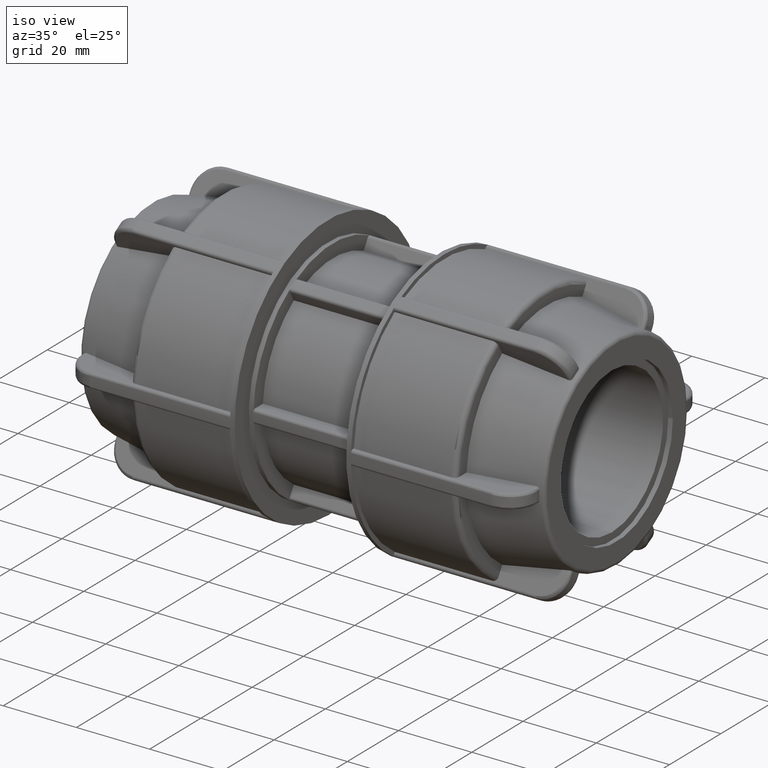
[diagram: clean part render]
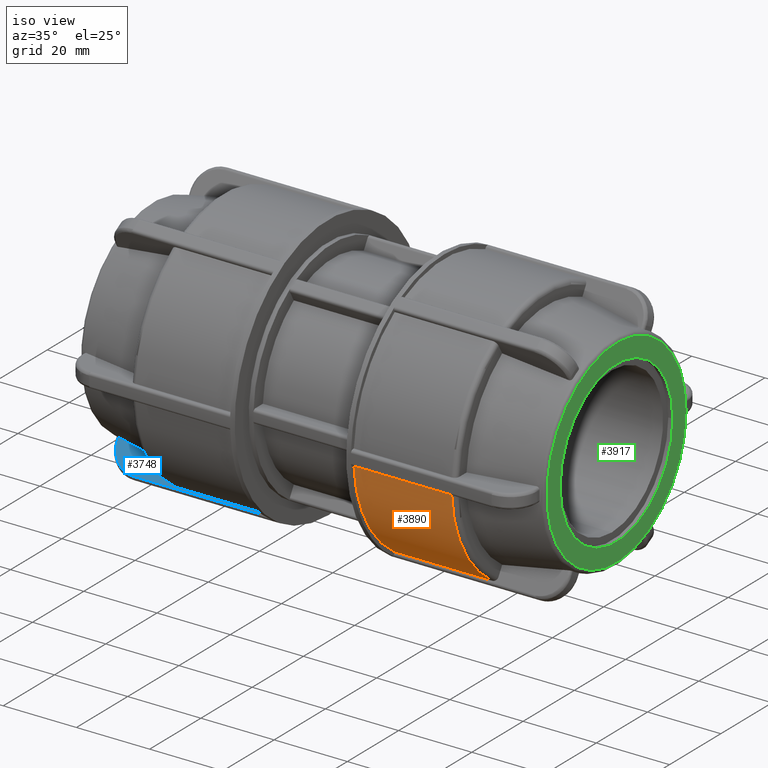
[diagram: same view with three faces highlighted in distinct colors, each labeled with its STEP entity id]
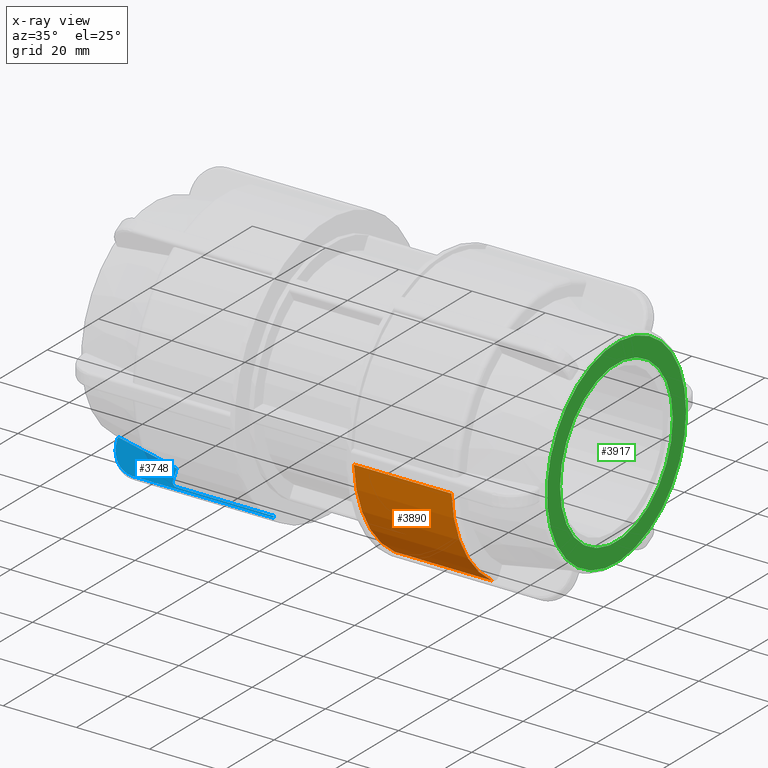
[diagram: x-ray of the same camera — body ghosted, the three highlighted faces saturated]
A machine part, iso view with three faces highlighted in distinct colors.
The next image is the same camera in x-ray (body ghosted, the three faces saturated) — at least one of them is partly hidden behind the body in this view.
Their STEP definitions:

[orange] entity #3890 — the highlighted cylindrical surface (partial cylindrical patch) has radius 35.405 mm, axis along (1, 0, 0).
#504=FACE_OUTER_BOUND('',#756,.T.);
#756=EDGE_LOOP('',(#3444,#3445,#3446,#3447));
#972=LINE('',#7444,#1200);
#996=LINE('',#7827,#1224);
#1200=VECTOR('',#5204,26.67);
#1224=VECTOR('',#5292,26.67);
#1450=CIRCLE('',#4298,35.405);
#1457=CIRCLE('',#4311,35.405);
#1779=VERTEX_POINT('',#7441);
#1780=VERTEX_POINT('',#7443);
#1821=VERTEX_POINT('',#7815);
#1822=VERTEX_POINT('',#7826);
#2304=EDGE_CURVE('',#1780,#1779,#972,.T.);
#2366=EDGE_CURVE('',#1822,#1821,#996,.T.);
#2389=EDGE_CURVE('',#1779,#1822,#1450,.T.);
#2398=EDGE_CURVE('',#1780,#1821,#1457,.T.);
#3444=ORIENTED_EDGE('',*,*,#2366,.T.);
#3445=ORIENTED_EDGE('',*,*,#2398,.F.);
#3446=ORIENTED_EDGE('',*,*,#2304,.T.);
#3447=ORIENTED_EDGE('',*,*,#2389,.T.);
#3682=CYLINDRICAL_SURFACE('',#4310,35.405);
#3890=ADVANCED_FACE('',(#504),#3682,.T.);
#4298=AXIS2_PLACEMENT_3D('',#7907,#5332,#5333);
#4310=AXIS2_PLACEMENT_3D('',#7924,#5358,#5359);
#4311=AXIS2_PLACEMENT_3D('',#7925,#5360,#5361);
#5204=DIRECTION('',(-1.,-3.06161699786838E-16,0.));
#5292=DIRECTION('',(1.,3.06161699786838E-16,0.));
#5332=DIRECTION('center_axis',(1.,3.06161699786838E-16,0.));
#5333=DIRECTION('ref_axis',(0.,0.,-1.));
#5358=DIRECTION('center_axis',(1.,3.06161699786838E-16,0.));
#5359=DIRECTION('ref_axis',(-3.49759962317046E-16,1.,0.));
#5360=DIRECTION('center_axis',(1.,3.06161699786838E-16,0.));
#5361=DIRECTION('ref_axis',(3.05738581841414E-16,-1.,1.83697019872103E-16));
#7441=CARTESIAN_POINT('',(16.51,-35.3484656668433,-1.99999999999999));
#7443=CARTESIAN_POINT('',(43.18,-35.3484656668433,-1.99999999999999));
#7444=CARTESIAN_POINT('',(30.48,-35.3484656668433,-1.99999999999999));
#7815=CARTESIAN_POINT('',(43.18,-19.4062836409905,-29.6126692522883));
#7826=CARTESIAN_POINT('',(16.51,-19.4062836409905,-29.6126692522883));
#7827=CARTESIAN_POINT('',(30.48,-19.4062836409905,-29.6126692522883));
#7907=CARTESIAN_POINT('Origin',(16.51,5.0547296634807E-15,0.));
#7924=CARTESIAN_POINT('Origin',(30.48,9.33180860950283E-15,0.));
#7925=CARTESIAN_POINT('Origin',(43.18,1.32200621967957E-14,0.));

[blue] entity #3748 — the highlighted planar face has unit normal (-0, 0.866, -0.5).
#44=(
BOUNDED_CURVE()
B_SPLINE_CURVE(2,(#6011,#6012,#6013),.UNSPECIFIED.,.F.,.F.)
B_SPLINE_CURVE_WITH_KNOTS((3,3),(0.0779852374107117,1.80555209068343),
 .UNSPECIFIED.)
CURVE()
GEOMETRIC_REPRESENTATION_ITEM()
RATIONAL_B_SPLINE_CURVE((1.00011517515057,1.0013332955109,1.))
REPRESENTATION_ITEM('')
);
#75=B_SPLINE_CURVE_WITH_KNOTS('',3,(#5970,#5971,#5972,#5973,#5974,#5975),
 .UNSPECIFIED.,.F.,.F.,(4,1,1,4),(4.83174890609324E-18,0.442451345834858,
0.737418909724763,1.03238647361467),.UNSPECIFIED.);
#77=B_SPLINE_CURVE_WITH_KNOTS('',3,(#5999,#6000,#6001,#6002,#6003,#6004,
#6005,#6006,#6007,#6008),.UNSPECIFIED.,.F.,.F.,(4,2,2,2,4),(-0.188239151864904,
-0.14113297843627,-0.0940699030958905,-0.0470157208104114,0.),
 .UNSPECIFIED.);
#239=PLANE('',#4056);
#362=FACE_OUTER_BOUND('',#604,.T.);
#604=EDGE_LOOP('',(#2728,#2729,#2730,#2731,#2732,#2733,#2734,#2735));
#872=LINE('',#5930,#1100);
#874=LINE('',#5992,#1102);
#875=LINE('',#5995,#1103);
#876=LINE('',#5997,#1104);
#877=LINE('',#6010,#1105);
#1100=VECTOR('',#4708,38.42);
#1102=VECTOR('',#4714,0.890342917537792);
#1103=VECTOR('',#4717,0.398981794479014);
#1104=VECTOR('',#4718,26.67);
#1105=VECTOR('',#4719,2.78117222986592);
#1602=VERTEX_POINT('',#5926);
#1603=VERTEX_POINT('',#5928);
#1604=VERTEX_POINT('',#5961);
#1606=VERTEX_POINT('',#5977);
#1608=VERTEX_POINT('',#5994);
#1609=VERTEX_POINT('',#5996);
#1610=VERTEX_POINT('',#5998);
#1611=VERTEX_POINT('',#6009);
#2026=EDGE_CURVE('',#1603,#1602,#872,.T.);
#2029=EDGE_CURVE('',#1602,#1604,#75,.T.);
#2032=EDGE_CURVE('',#1604,#1606,#874,.T.);
#2033=EDGE_CURVE('',#1608,#1603,#875,.T.);
#2034=EDGE_CURVE('',#1609,#1608,#876,.T.);
#2035=EDGE_CURVE('',#1610,#1609,#77,.T.);
#2036=EDGE_CURVE('',#1611,#1610,#877,.T.);
#2037=EDGE_CURVE('',#1606,#1611,#44,.T.);
#2728=ORIENTED_EDGE('',*,*,#2032,.F.);
#2729=ORIENTED_EDGE('',*,*,#2029,.F.);
#2730=ORIENTED_EDGE('',*,*,#2026,.F.);
#2731=ORIENTED_EDGE('',*,*,#2033,.F.);
#2732=ORIENTED_EDGE('',*,*,#2034,.F.);
#2733=ORIENTED_EDGE('',*,*,#2035,.F.);
#2734=ORIENTED_EDGE('',*,*,#2036,.F.);
#2735=ORIENTED_EDGE('',*,*,#2037,.F.);
#3748=ADVANCED_FACE('',(#362),#239,.F.);
#4056=AXIS2_PLACEMENT_3D('',#5993,#4715,#4716);
#4708=DIRECTION('',(-1.,-2.74133703192332E-16,-2.00402884577185E-17));
#4714=DIRECTION('',(-8.76834560981078E-17,0.500000000000001,0.866025403784438));
#4715=DIRECTION('center_axis',(-2.27386606769204E-16,0.866025403784438,
-0.500000000000001));
#4716=DIRECTION('ref_axis',(0.,-0.500000000000001,-0.866025403784438));
#4717=DIRECTION('',(1.53080849893419E-16,-0.5,-0.866025403784438));
#4718=DIRECTION('',(1.,3.06161699786838E-16,0.));
#4719=DIRECTION('',(1.53080849893419E-16,-0.500000000000001,-0.866025403784438));
#5926=CARTESIAN_POINT('',(-54.93,-19.6057745382301,-29.9581976219547));
#5928=CARTESIAN_POINT('',(-16.51,-19.6057745382301,-29.9581976219547));
#5930=CARTESIAN_POINT('',(-15.875,-19.6057745382301,-29.9581976219547));
#5961=CARTESIAN_POINT('',(-61.5,-16.3182351955437,-24.2640124485403));
#5970=CARTESIAN_POINT('Ctrl Pts',(-54.93,-19.6057745382301,-29.9581976219547));
#5971=CARTESIAN_POINT('Ctrl Pts',(-56.4048378194495,-19.6057745382301,-29.9581976219547));
#5972=CARTESIAN_POINT('Ctrl Pts',(-58.8539209058384,-19.1742235415645,-29.2107293696729));
#5973=CARTESIAN_POINT('Ctrl Pts',(-61.0509243131924,-17.7912919020109,-26.8154215065716));
#5974=CARTESIAN_POINT('Ctrl Pts',(-61.5,-16.8098478020269,-25.1155104606105));
#5975=CARTESIAN_POINT('Ctrl Pts',(-61.5,-16.3182351955437,-24.2640124485403));
#5977=CARTESIAN_POINT('',(-61.5,-15.8730637367748,-23.492952863873));
#5992=CARTESIAN_POINT('',(-61.5,-11.7633623786509,-16.3747413076675));
#5993=CARTESIAN_POINT('Origin',(-15.24,-9.02379956901151,-11.6296793308461));
#5994=CARTESIAN_POINT('',(-16.51,-19.4062836409906,-29.6126692522883));
#5995=CARTESIAN_POINT('',(-16.51,-0.952300188290187,2.35056768982399));
#5996=CARTESIAN_POINT('',(-43.18,-19.4062836409906,-29.6126692522883));
#5997=CARTESIAN_POINT('',(-30.48,-19.4062836409906,-29.6126692522883));
#5998=CARTESIAN_POINT('',(-44.45,-18.7702301777364,-28.5109923376019));
#5999=CARTESIAN_POINT('Ctrl Pts',(-44.45,-18.7702301777364,-28.5109923376019));
#6000=CARTESIAN_POINT('Ctrl Pts',(-44.45,-18.8487404667841,-28.6469761471495));
#6001=CARTESIAN_POINT('Ctrl Pts',(-44.4133007276922,-18.9411485679083,-28.8070316733275));
#6002=CARTESIAN_POINT('Ctrl Pts',(-44.2933233619041,-19.0861805209641,-29.0582343847412));
#6003=CARTESIAN_POINT('Ctrl Pts',(-44.1888637765794,-19.1644862104153,-29.1938638173924));
#6004=CARTESIAN_POINT('Ctrl Pts',(-43.9672083916521,-19.275494947721,-29.38613659049));
#6005=CARTESIAN_POINT('Ctrl Pts',(-43.8107957448815,-19.3278414401038,-29.4768033748949));
#6006=CARTESIAN_POINT('Ctrl Pts',(-43.5211571746938,-19.387910880195,-29.5808466971152));
#6007=CARTESIAN_POINT('Ctrl Pts',(-43.336719069368,-19.4062836409906,-29.6126692522883));
#6008=CARTESIAN_POINT('Ctrl Pts',(-43.18,-19.4062836409906,-29.6126692522883));
#6009=CARTESIAN_POINT('',(-44.45,-17.3796440628034,-26.1024265342382));
#6010=CARTESIAN_POINT('',(-44.45,-1.45804656547817,1.47458926879054));
#6011=CARTESIAN_POINT('Ctrl Pts',(-61.5000000000003,-15.8730637367748,-23.492952863873));
#6012=CARTESIAN_POINT('Ctrl Pts',(-53.4061581674267,-16.5884270946649,-24.7319985456117));
#6013=CARTESIAN_POINT('Ctrl Pts',(-44.45,-17.3796440628034,-26.1024265342382));

[green] entity #3917 — the highlighted planar face has unit normal (1, 0, 0).
#211=FACE_BOUND('',#786,.T.);
#303=PLANE('',#4358);
#531=FACE_OUTER_BOUND('',#785,.T.);
#785=EDGE_LOOP('',(#3591));
#786=EDGE_LOOP('',(#3592));
#1479=CIRCLE('',#4357,27.1609003688227);
#1480=CIRCLE('',#4359,22.);
#1857=VERTEX_POINT('',#8132);
#1858=VERTEX_POINT('',#8135);
#2439=EDGE_CURVE('',#1857,#1857,#1479,.T.);
#2440=EDGE_CURVE('',#1858,#1858,#1480,.T.);
#3591=ORIENTED_EDGE('',*,*,#2439,.F.);
#3592=ORIENTED_EDGE('',*,*,#2440,.F.);
#3917=ADVANCED_FACE('',(#531,#211),#303,.T.);
#4357=AXIS2_PLACEMENT_3D('',#8133,#5461,#5462);
#4358=AXIS2_PLACEMENT_3D('',#8134,#5463,#5464);
#4359=AXIS2_PLACEMENT_3D('',#8136,#5465,#5466);
#5461=DIRECTION('center_axis',(-1.,-3.06161699786838E-16,0.));
#5462=DIRECTION('ref_axis',(3.06161699786838E-16,-1.,1.83697019872103E-16));
#5463=DIRECTION('center_axis',(1.,3.06161699786838E-16,0.));
#5464=DIRECTION('ref_axis',(0.,0.,-1.));
#5465=DIRECTION('center_axis',(1.,3.06161699786838E-16,0.));
#5466=DIRECTION('ref_axis',(0.,0.,-1.));
#8132=CARTESIAN_POINT('',(63.5,27.1609003688227,-8.31562742465973E-15));
#8133=CARTESIAN_POINT('Origin',(63.5,1.94412679364642E-14,0.));
#8134=CARTESIAN_POINT('Origin',(63.5,22.,0.));
#8135=CARTESIAN_POINT('',(63.5,22.,0.));
#8136=CARTESIAN_POINT('Origin',(63.5,1.94412679364642E-14,0.));